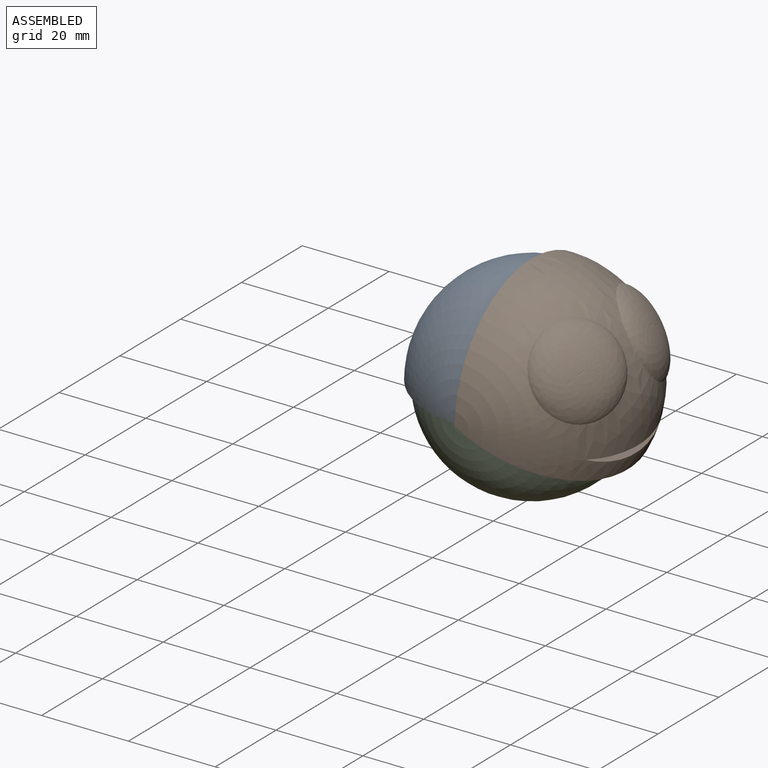
[diagram: assembled view]
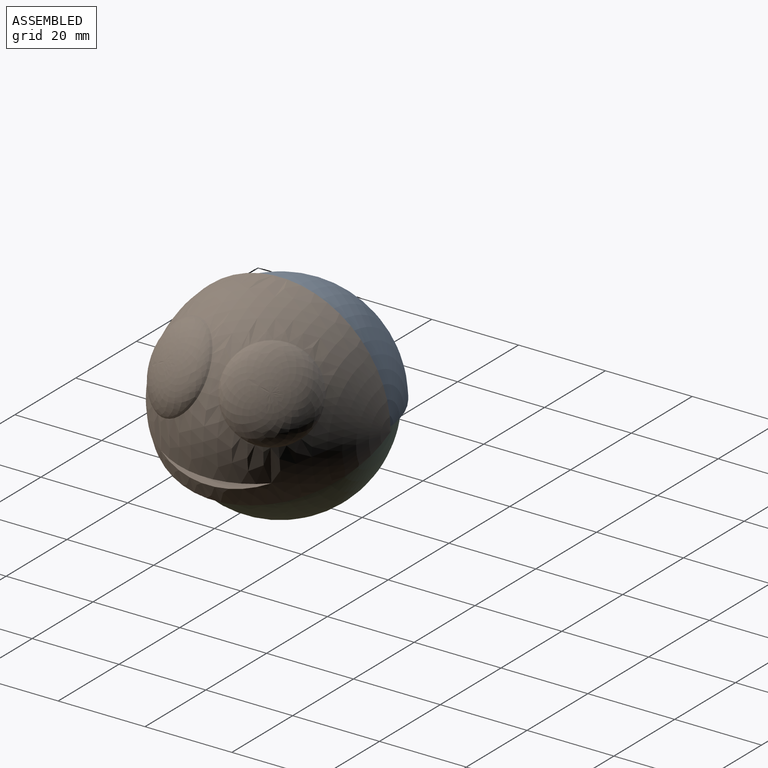
[diagram: assembled view, second angle]
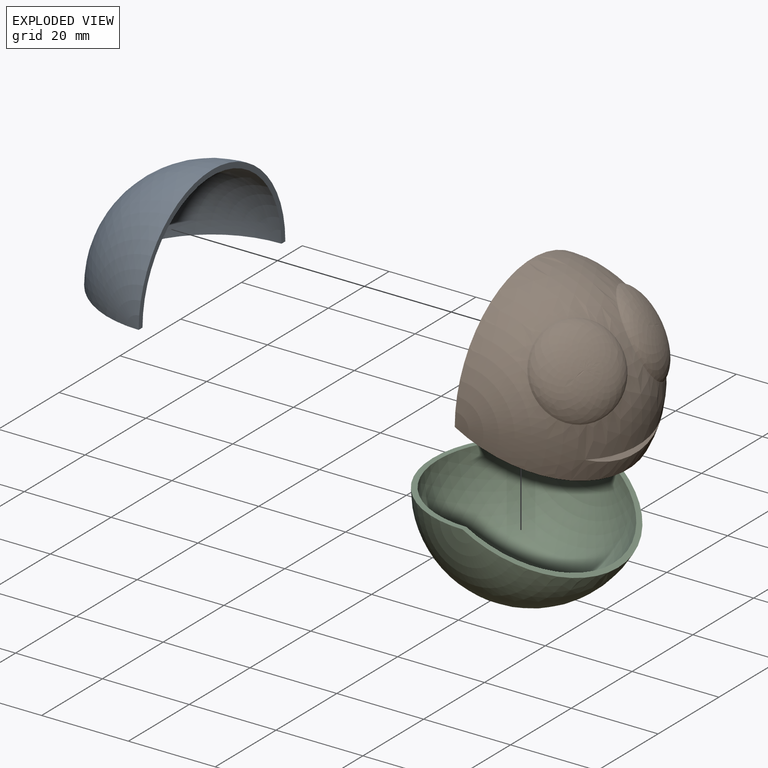
[diagram: exploded view]
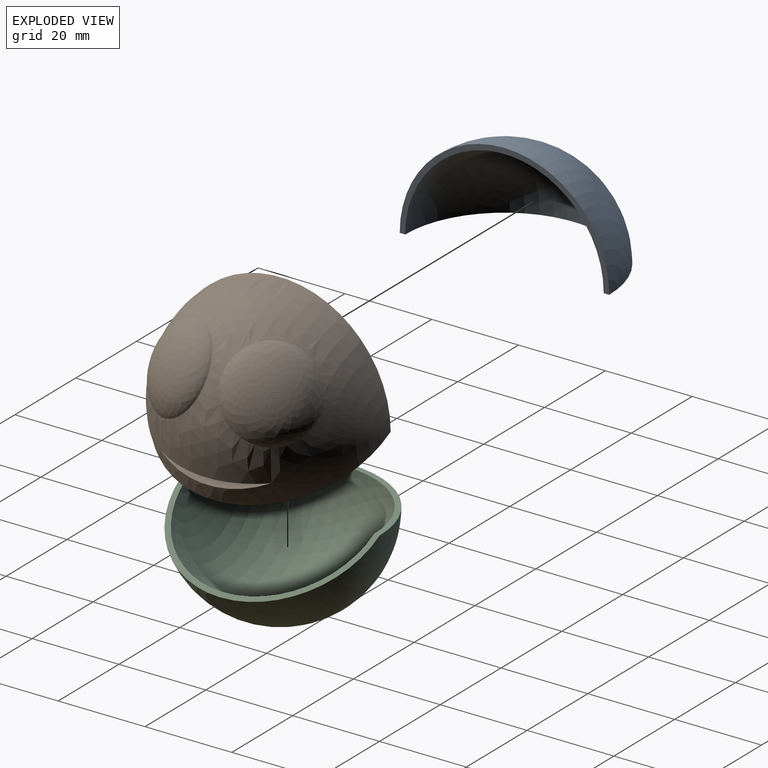
[diagram: exploded view, second angle]
ASSEMBLY  parts=3 mates=2
PART A: 4 faces, bbox 30.9x48.3x24.1 mm
  f0: sphere r=22.86mm, area 1641.7mm2, adj f2,f3
  f1: sphere r=24.13mm, area 1829.2mm2, adj f2,f3
  f2: plane 48.26x22.67mm, normal (-0.94,0,-0.34), area 93.7mm2, adj f0,f1,f3
  f3: plane 48.26x22.67mm, normal (0.34,0,-0.94), area 93.7mm2, adj f0,f1,f2
PART B: 10 faces, bbox 38.1x50.8x25.4 mm
  f0: sphere r=25.4mm, area 1991.5mm2, adj f2,f3,f5,f7,f8,f9
  f1: sphere r=24.13mm, area 1696.6mm2, adj f2,f3,f4,f6,f8,f9
  f2: plane 50.8x22mm, normal (-0.87,0,-0.5), area 98.8mm2, adj f0,f1,f3
  f3: plane 50.8x25.4mm, normal (0,0,-1), area 98.8mm2, adj f0,f1,f2
  f4: revolved ~18.42x11.78mm, area 0mm2, adj f1
  f5: revolved ~17.86x11.43mm, area 0mm2, adj f0
  f6: revolved ~18.42x11.78mm, area 0mm2, adj f1
  f7: revolved ~18.31x18.12mm, area 384.9mm2, adj f0
  f8: plane 25.4x3.7mm, normal (0.28,0,0.96), area 33.8mm2, adj f0,f1,f9
  f9: plane 25.4x3.3mm, normal (0.24,0,-0.97), area 30mm2, adj f0,f1,f8
PART C: 4 faces, bbox 42.7x45.7x22.9 mm
  f0: sphere r=22.86mm, area 2736.2mm2, adj f2,f3
  f1: sphere r=21.59mm, area 2440.6mm2, adj f2,f3
  f2: plane 45.72x22.86mm, normal (0,0,-1), area 88.7mm2, adj f0,f1,f3
  f3: plane 45.72x19.8mm, normal (0.5,0,-0.87), area 88.7mm2, adj f0,f1,f2
PLACE A rot(axis=(0,-1,0),70deg) t=(87.05,14.12,-11.13)mm
PLACE B rot(axis=(0,1,0),30deg) t=(67.25,14.12,0.3)mm fixed
PLACE C rot(axis=(0,-1,0),150deg) t=(73.85,14.12,-3.51)mm
MATE fastened A.f2 <-> C.f3  axis (0,0,-1) through (87.05,-8.74,-11.13)mm
MATE fastened B.f2 <-> A.f3  axis (-1,0,0) through (87.05,-10.01,-11.13)mm
